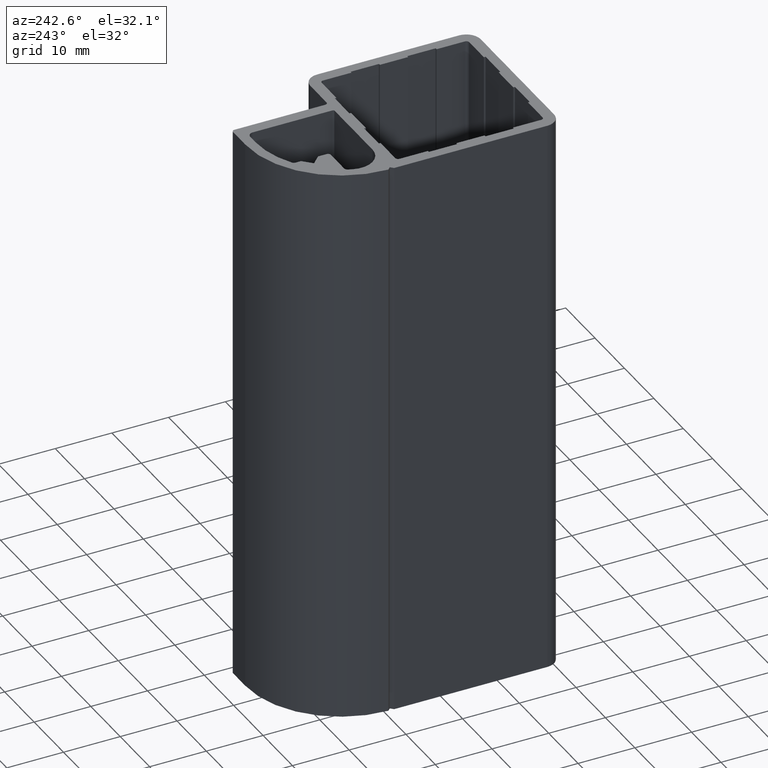
[diagram: clean part render]
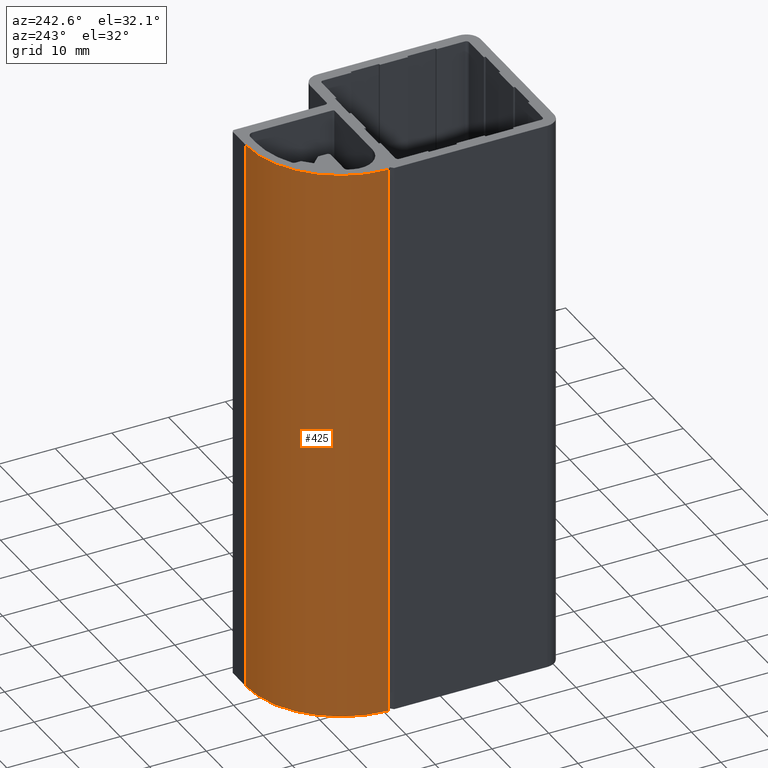
[diagram: same view with one face highlighted and labeled with its STEP entity id]
A machine part, auxiliary view. The second image highlights one B-rep face of the part: STEP entity #425.
In plain terms, the highlighted cylindrical surface (partial cylindrical patch) has radius 16.743 mm, axis along (0, 0, 1).
Its self-contained STEP definition (entity closure, byte-faithful):
#368=CARTESIAN_POINT('',(1.892377089201091,47.000000000139835,0.0));
#369=VERTEX_POINT('',#368);
#376=CARTESIAN_POINT('',(1.892377089201091,47.000000000139835,100.0));
#377=VERTEX_POINT('',#376);
#378=CARTESIAN_POINT('',(1.892377089201091,47.000000000139835,100.0));
#379=DIRECTION('',(0.0,0.0,-1.0));
#380=VECTOR('',#379,100.0);
#381=LINE('',#378,#380);
#382=EDGE_CURVE('',#377,#369,#381,.T.);
#393=CARTESIAN_POINT('',(1.741036382615334,30.257664848551713,100.0));
#394=DIRECTION('',(0.0,0.0,1.0));
#395=DIRECTION('',(0.009039033235776,0.999959147104602,0.0));
#396=AXIS2_PLACEMENT_3D('',#393,#394,#395);
#397=CYLINDRICAL_SURFACE('',#396,16.743019152398208);
#398=ORIENTED_EDGE('',*,*,#382,.T.);
#399=CARTESIAN_POINT('',(-15.000228922371662,30.499999999969646,0.0));
#400=VERTEX_POINT('',#399);
#401=CARTESIAN_POINT('',(1.741036382615334,30.257664848551716,0.0));
#402=DIRECTION('',(0.0,0.0,1.0));
#403=DIRECTION('',(0.009039033235776,0.999959147104602,0.0));
#404=AXIS2_PLACEMENT_3D('',#401,#402,#403);
#405=CIRCLE('',#404,16.743019152398208);
#406=EDGE_CURVE('',#369,#400,#405,.T.);
#407=ORIENTED_EDGE('',*,*,#406,.T.);
#408=CARTESIAN_POINT('',(-15.000228922371662,30.499999999969646,100.0));
#409=VERTEX_POINT('',#408);
#410=CARTESIAN_POINT('',(-15.000228922371662,30.499999999969646,100.0));
#411=DIRECTION('',(0.0,0.0,-1.0));
#412=VECTOR('',#411,100.0);
#413=LINE('',#410,#412);
#414=EDGE_CURVE('',#409,#400,#413,.T.);
#415=ORIENTED_EDGE('',*,*,#414,.F.);
#416=CARTESIAN_POINT('',(1.741036382615334,30.257664848551716,100.0));
#417=DIRECTION('',(0.0,0.0,1.0));
#418=DIRECTION('',(0.009039033235776,0.999959147104602,0.0));
#419=AXIS2_PLACEMENT_3D('',#416,#417,#418);
#420=CIRCLE('',#419,16.743019152398208);
#421=EDGE_CURVE('',#377,#409,#420,.T.);
#422=ORIENTED_EDGE('',*,*,#421,.F.);
#423=EDGE_LOOP('',(#398,#407,#415,#422));
#424=FACE_OUTER_BOUND('',#423,.T.);
#425=ADVANCED_FACE('',(#424),#397,.T.);